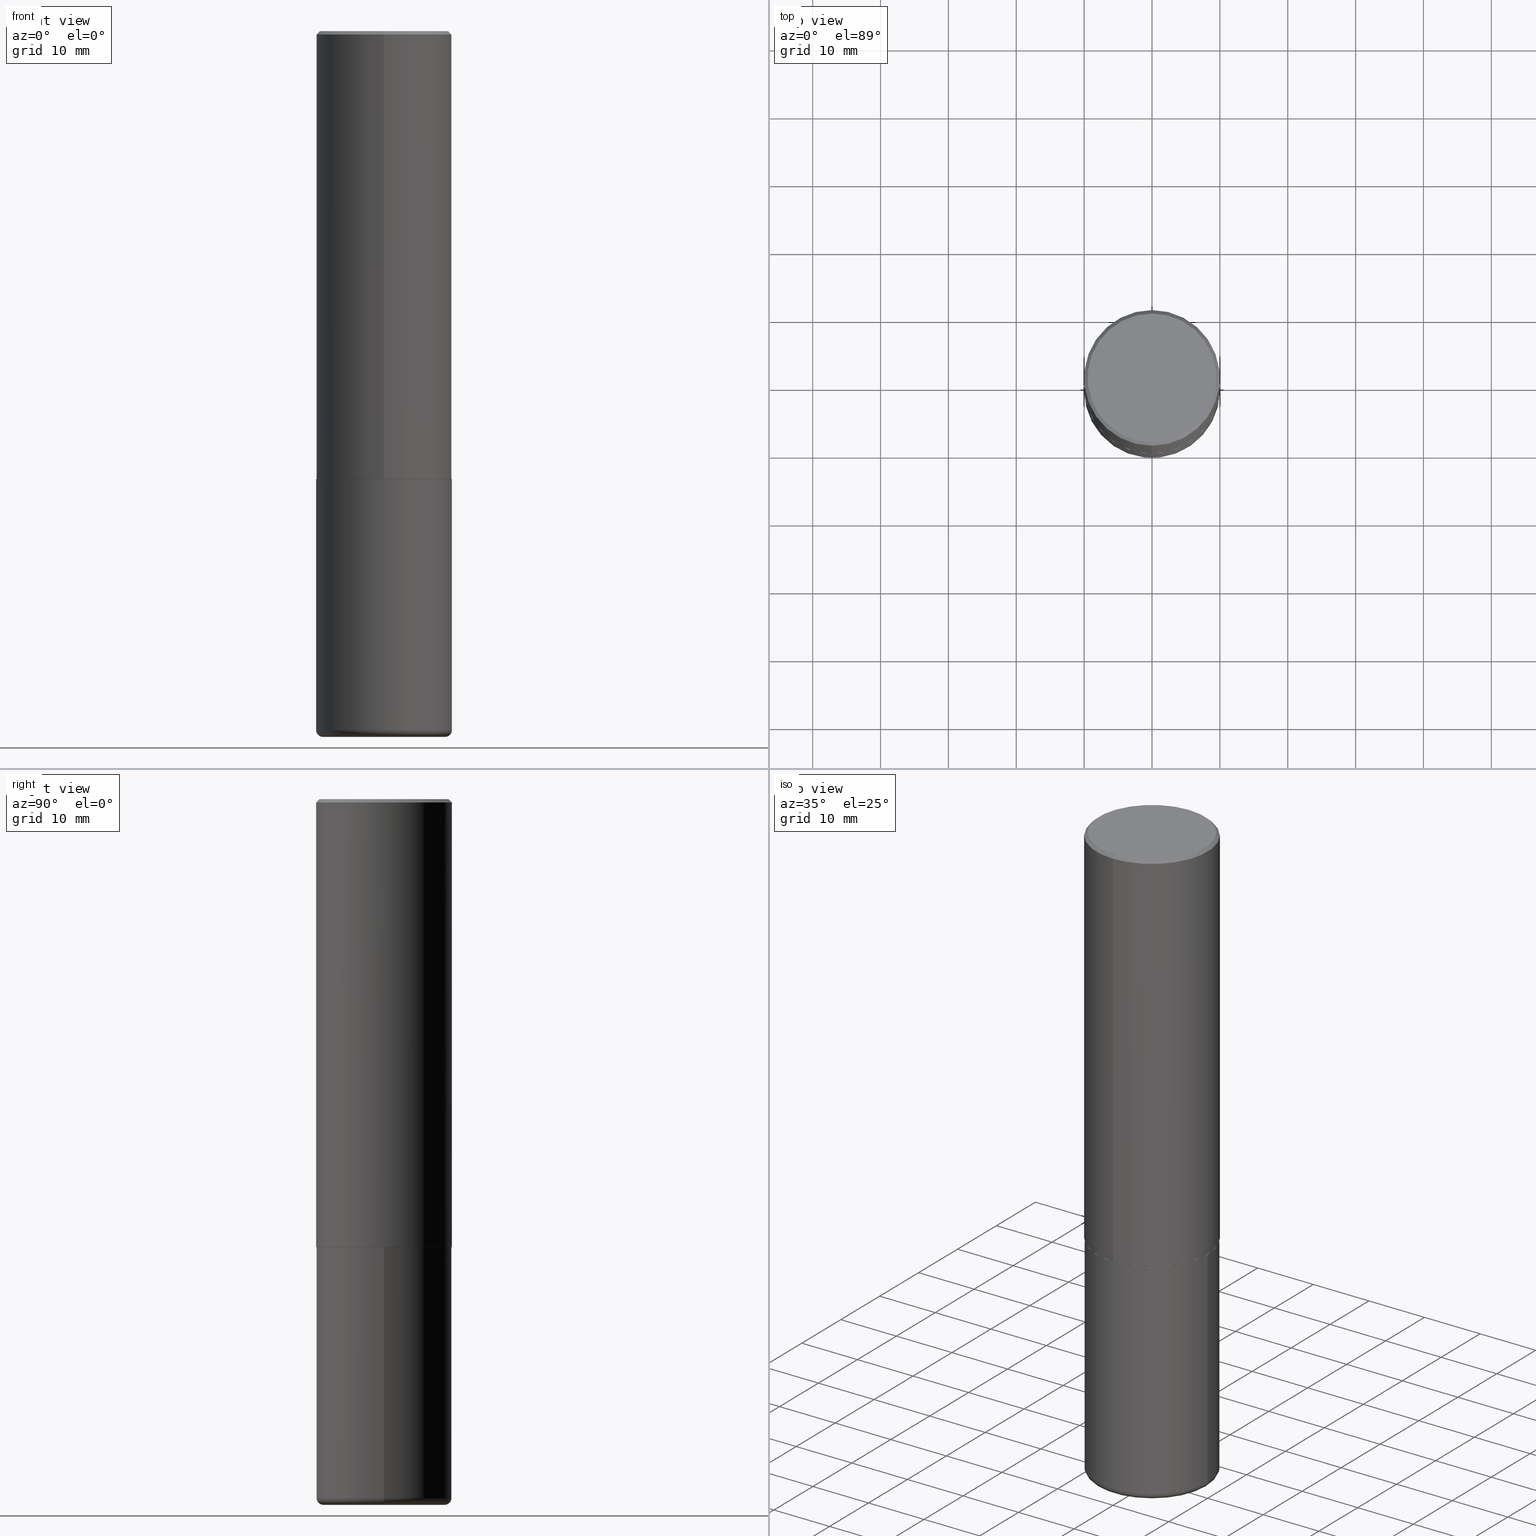
[diagram: canonical four-view strip — front | top / right | iso, engineering-drawing reading convention]
A machine part, canonical four-view strip (front | top / right | iso — engineering-drawing reading convention). The complete STEP part file that produces these views, byte-faithful:
ISO-10303-21;
HEADER;
FILE_DESCRIPTION (( 'STEP AP203' ),
    '1' );
FILE_NAME ('46922.STEP',
    '2024-03-05T08:50:15',
    ( '' ),
    ( '' ),
    'SwSTEP 2.0',
    'SolidWorks 2023',
    '' );
FILE_SCHEMA (( 'CONFIG_CONTROL_DESIGN' ));
ENDSEC;

DATA;
#1 = DIRECTION ( 'NONE',  ( 6.982962677686265133E-15, 1.000000000000000000, -3.491137977679279424E-15 ) ) ;
#2 = EDGE_LOOP ( 'NONE', ( #32, #122, #293, #216 ) ) ;
#3 = CIRCLE ( 'NONE', #35, 0.3937000000000001054 ) ;
#4 = AXIS2_PLACEMENT_3D ( 'NONE', #298, #327, #412 ) ;
#5 = ADVANCED_FACE ( 'NONE', ( #137 ), #66, .T. ) ;
#6 = PERSON_AND_ORGANIZATION_ROLE ( 'design_owner' ) ;
#7 =( NAMED_UNIT ( * ) PLANE_ANGLE_UNIT ( ) SI_UNIT ( $, .RADIAN. ) );
#8 = AXIS2_PLACEMENT_3D ( 'NONE', #98, #86, #124 ) ;
#9 = CARTESIAN_POINT ( 'NONE',  ( 1.001297202692504215E-28, -1.429587034189326149E-14, -4.094500000000000028 ) ) ;
#10 = CC_DESIGN_PERSON_AND_ORGANIZATION_ASSIGNMENT ( #400, #404, ( #324 ) ) ;
#11 = DIRECTION ( 'NONE',  ( 6.982962677686265133E-15, 1.000000000000000000, -3.491137977679279424E-15 ) ) ;
#12 = CONICAL_SURFACE ( 'NONE', #183, 0.3926999999999999935, 0.7853981633976873100 ) ;
#13 = SHAPE_DEFINITION_REPRESENTATION ( #19, #93 ) ;
#14 = CIRCLE ( 'NONE', #304, 0.03940000000000005997 ) ;
#15 = CARTESIAN_POINT ( 'NONE',  ( 6.353240808808724474E-29, -9.073790734330933280E-15, -2.598400000000000265 ) ) ;
#16 = CC_DESIGN_PERSON_AND_ORGANIZATION_ASSIGNMENT ( #231, #6, ( #315 ) ) ;
#17 = DATE_AND_TIME ( #377, #125 ) ;
#18 = DIRECTION ( 'NONE',  ( -2.445058808808776392E-29, 3.492068478421694670E-15, 1.000000000000000000 ) ) ;
#19 = PRODUCT_DEFINITION_SHAPE ( 'NONE', 'NONE',  #47 ) ;
#20 = DATE_TIME_ROLE ( 'creation_date' ) ;
#21 = DIRECTION ( 'NONE',  ( -2.445468806185136877E-29, 3.491481338843145188E-15, 1.000000000000000000 ) ) ;
#22 = LOCAL_TIME ( 3, 50, 15.00000000000000000, #312 ) ;
#23 = DIRECTION ( 'NONE',  ( -6.982962677686265133E-15, -1.000000000000000000, 4.173946514383900962E-15 ) ) ;
#24 = DIRECTION ( 'NONE',  ( 4.937700262164543309E-15, 0.7071067811865444641, -0.7071067811865503483 ) ) ;
#25 = VERTEX_POINT ( 'NONE', #77 ) ;
#26 = CARTESIAN_POINT ( 'NONE',  ( -5.119379194384959481E-45, 7.311571668294261102E-31, 2.093765260754239936E-16 ) ) ;
#27 = ORIENTED_EDGE ( 'NONE', *, *, #85, .T. ) ;
#28 = PLANE ( 'NONE',  #275 ) ;
#29 = VERTEX_POINT ( 'NONE', #263 ) ;
#30 = CLOSED_SHELL ( 'NONE', ( #105, #159, #168, #50, #89, #80, #59, #213 ) ) ;
#31 = FACE_OUTER_BOUND ( 'NONE', #55, .T. ) ;
#32 = ORIENTED_EDGE ( 'NONE', *, *, #82, .F. ) ;
#33 = DIRECTION ( 'NONE',  ( 6.982962677686265922E-15, 1.000000000000000000, -3.492068478421695064E-15 ) ) ;
#34 = ORIENTED_EDGE ( 'NONE', *, *, #193, .F. ) ;
#35 = AXIS2_PLACEMENT_3D ( 'NONE', #333, #101, #334 ) ;
#36 = AXIS2_PLACEMENT_3D ( 'NONE', #160, #417, #129 ) ;
#37 = DIRECTION ( 'NONE',  ( 0.000000000000000000, 0.000000000000000000, 1.000000000000000000 ) ) ;
#38 = DIRECTION ( 'NONE',  ( -2.445468806185136597E-29, 3.491481338843145583E-15, 1.000000000000000000 ) ) ;
#39 = VECTOR ( 'NONE', #21, 39.37007874015748143 ) ;
#40 = CARTESIAN_POINT ( 'NONE',  ( -0.3937000000000001054, 2.797406750687515181E-15, -1.936584745033357016E-29 ) ) ;
#41 = CARTESIAN_POINT ( 'NONE',  ( 1.001297202692504215E-28, -1.429587034189326149E-14, -4.094500000000000028 ) ) ;
#42 = DIRECTION ( 'NONE',  ( -2.445058808808776392E-29, 3.492068478421694670E-15, 1.000000000000000000 ) ) ;
#43 = APPROVAL ( #274, 'UNSPECIFIED' ) ;
#44 = DIRECTION ( 'NONE',  ( 1.000000000000000000, -6.982962677686266711E-15, 4.876176775795935793E-29 ) ) ;
#45 = DIRECTION ( 'NONE',  ( 1.000000000000000000, -6.982962677686266711E-15, 4.883557194083112340E-29 ) ) ;
#46 = DATE_AND_TIME ( #113, #233 ) ;
#47 = PRODUCT_DEFINITION ( 'UNKNOWN', '', #324, #91 ) ;
#48 = SECURITY_CLASSIFICATION_LEVEL ( 'unclassified' ) ;
#49 = CIRCLE ( 'NONE', #8, 0.3937000000000002720 ) ;
#50 = ADVANCED_FACE ( 'NONE', ( #176 ), #336, .T. ) ;
#51 = APPROVAL_DATE_TIME ( #406, #43 ) ;
#52 = DIRECTION ( 'NONE',  ( -2.445058808808776392E-29, 3.492068478421694670E-15, 1.000000000000000000 ) ) ;
#53 = ORIENTED_EDGE ( 'NONE', *, *, #112, .T. ) ;
#54 = CARTESIAN_POINT ( 'NONE',  ( 2.609533152651355831E-15, 0.3736999999999997546, -1.200297727348474625E-15 ) ) ;
#55 = EDGE_LOOP ( 'NONE', ( #68, #350 ) ) ;
#56 = FACE_OUTER_BOUND ( 'NONE', #299, .T. ) ;
#57 = AXIS2_PLACEMENT_3D ( 'NONE', #207, #335, #45 ) ;
#58 = LINE ( 'NONE', #189, #389 ) ;
#59 = ADVANCED_FACE ( 'NONE', ( #232 ), #72, .F. ) ;
#60 = ORIENTED_EDGE ( 'NONE', *, *, #74, .F. ) ;
#61 = CARTESIAN_POINT ( 'NONE',  ( -2.749192406205021291E-15, -0.3937000000000093758, -2.597399999999999043 ) ) ;
#62 = VERTEX_POINT ( 'NONE', #203 ) ;
#63 = CIRCLE ( 'NONE', #36, 0.03940000000000005997 ) ;
#64 = DIRECTION ( 'NONE',  ( -4.851104656540959542E-15, -0.7071067811865493491, -0.7071067811865454633 ) ) ;
#65 = VERTEX_POINT ( 'NONE', #81 ) ;
#66 = TOROIDAL_SURFACE ( 'NONE', #57, 0.3543000000000000038, 0.03940000000000009467 ) ;
#67 = CARTESIAN_POINT ( 'NONE',  ( 4.890117617617573732E-31, -6.984136956843418330E-17, -0.02000000000000008715 ) ) ;
#68 = ORIENTED_EDGE ( 'NONE', *, *, #342, .F. ) ;
#69 = DIRECTION ( 'NONE',  ( -2.445468806185136597E-29, 3.491481338843145583E-15, 1.000000000000000000 ) ) ;
#70 = AXIS2_PLACEMENT_3D ( 'NONE', #75, #261, #44 ) ;
#71 = PERSON_AND_ORGANIZATION ( #361, #266 ) ;
#72 = PLANE ( 'NONE',  #343 ) ;
#73 = CARTESIAN_POINT ( 'NONE',  ( 6.354306145991459756E-29, -9.072265110850031044E-15, -2.598400000000000265 ) ) ;
#74 = EDGE_CURVE ( 'NONE', #99, #352, #305, .T. ) ;
#75 = CARTESIAN_POINT ( 'NONE',  ( 0.000000000000000000, 0.000000000000000000, 0.000000000000000000 ) ) ;
#76 = VECTOR ( 'NONE', #64, 39.37007874015748854 ) ;
#77 = CARTESIAN_POINT ( 'NONE',  ( 2.749192406205083217E-15, 0.3936999999999999389, -0.02000000000000146105 ) ) ;
#78 = DIRECTION ( 'NONE',  ( 5.024295867789263036E-15, 0.7071067811867189912, 0.7071067811863760433 ) ) ;
#79 = APPROVAL_PERSON_ORGANIZATION ( #71, #414, #106 ) ;
#80 = ADVANCED_FACE ( 'NONE', ( #56 ), #223, .T. ) ;
#81 = CARTESIAN_POINT ( 'NONE',  ( 0.3937000000000001054, -1.690749838334792550E-14, -4.055100000000000371 ) ) ;
#82 = EDGE_CURVE ( 'NONE', #62, #260, #383, .T. ) ;
#83 = VECTOR ( 'NONE', #119, 39.37007874015748143 ) ;
#84 = APPROVAL_ROLE ( '' ) ;
#85 = EDGE_CURVE ( 'NONE', #109, #29, #279, .T. ) ;
#86 = DIRECTION ( 'NONE',  ( -2.445058808808776392E-29, 3.492068478421694670E-15, 1.000000000000000000 ) ) ;
#87 = AXIS2_PLACEMENT_3D ( 'NONE', #26, #296, #351 ) ;
#88 = ORIENTED_EDGE ( 'NONE', *, *, #205, .T. ) ;
#89 = ADVANCED_FACE ( 'NONE', ( #375 ), #341, .T. ) ;
#90 = DIRECTION ( 'NONE',  ( -2.445468806185136597E-29, 3.491481338843145583E-15, 1.000000000000000000 ) ) ;
#91 = DESIGN_CONTEXT ( 'detailed design', #272, 'design' ) ;
#92 = ORIENTED_EDGE ( 'NONE', *, *, #123, .F. ) ;
#93 = ADVANCED_BREP_SHAPE_REPRESENTATION ( '46922', ( #397, #271, #116 ), #330 ) ;
#94 = FACE_OUTER_BOUND ( 'NONE', #219, .T. ) ;
#95 = ORIENTED_EDGE ( 'NONE', *, *, #123, .T. ) ;
#96 = DIRECTION ( 'NONE',  ( -1.000000000000000000, 7.105427357601014480E-15, 0.000000000000000000 ) ) ;
#97 = ORIENTED_EDGE ( 'NONE', *, *, #281, .F. ) ;
#98 = CARTESIAN_POINT ( 'NONE',  ( 6.350795749999916474E-29, -9.070298665852512644E-15, -2.597400000000000375 ) ) ;
#99 = VERTEX_POINT ( 'NONE', #152 ) ;
#100 = CARTESIAN_POINT ( 'NONE',  ( 6.353240808808724474E-29, -9.073790734330933280E-15, -2.598400000000000265 ) ) ;
#101 = DIRECTION ( 'NONE',  ( -2.445468806185136597E-29, 3.491481338843145583E-15, 1.000000000000000000 ) ) ;
#102 = DIRECTION ( 'NONE',  ( -2.445468806185136597E-29, 3.491481338843145583E-15, 1.000000000000000000 ) ) ;
#103 = ORIENTED_EDGE ( 'NONE', *, *, #199, .F. ) ;
#104 = AXIS2_PLACEMENT_3D ( 'NONE', #303, #157, #319 ) ;
#105 = ADVANCED_FACE ( 'NONE', ( #186 ), #12, .T. ) ;
#106 = APPROVAL_ROLE ( '' ) ;
#107 = CARTESIAN_POINT ( 'NONE',  ( 6.354306145991459756E-29, -9.072265110850031044E-15, -2.598400000000000265 ) ) ;
#108 = AXIS2_PLACEMENT_3D ( 'NONE', #278, #52, #182 ) ;
#109 = VERTEX_POINT ( 'NONE', #154 ) ;
#110 = ORIENTED_EDGE ( 'NONE', *, *, #220, .F. ) ;
#111 = AXIS2_PLACEMENT_3D ( 'NONE', #285, #416, #140 ) ;
#112 = EDGE_CURVE ( 'NONE', #252, #290, #146, .T. ) ;
#113 = CALENDAR_DATE ( 2024, 5, 3 ) ;
#114 = APPROVAL_DATE_TIME ( #17, #237 ) ;
#115 = CC_DESIGN_DATE_AND_TIME_ASSIGNMENT ( #180, #20, ( #47 ) ) ;
#116 = AXIS2_PLACEMENT_3D ( 'NONE', #309, #37, #177 ) ;
#117 = DIRECTION ( 'NONE',  ( -6.982962677686265922E-15, -1.000000000000000000, 3.492068478421694670E-15 ) ) ;
#118 = APPROVAL_STATUS ( 'not_yet_approved' ) ;
#119 = DIRECTION ( 'NONE',  ( -2.445058808808776111E-29, 3.492068478421695064E-15, 1.000000000000000000 ) ) ;
#120 = EDGE_CURVE ( 'NONE', #290, #25, #364, .T. ) ;
#121 = FACE_OUTER_BOUND ( 'NONE', #133, .T. ) ;
#122 = ORIENTED_EDGE ( 'NONE', *, *, #193, .T. ) ;
#123 = EDGE_CURVE ( 'NONE', #29, #109, #415, .T. ) ;
#124 = DIRECTION ( 'NONE',  ( -6.982962677686265922E-15, -1.000000000000000000, 4.163344669033672479E-15 ) ) ;
#125 = LOCAL_TIME ( 3, 50, 15.00000000000000000, #311 ) ;
#126 = ORIENTED_EDGE ( 'NONE', *, *, #243, .T. ) ;
#127 = PLANE ( 'NONE',  #238 ) ;
#128 = ORIENTED_EDGE ( 'NONE', *, *, #85, .F. ) ;
#129 = DIRECTION ( 'NONE',  ( 1.000000000000000000, -6.982962677686267499E-15, 0.000000000000000000 ) ) ;
#130 = EDGE_CURVE ( 'NONE', #109, #413, #242, .T. ) ;
#131 = EDGE_LOOP ( 'NONE', ( #195, #326, #153, #323 ) ) ;
#132 = DIRECTION ( 'NONE',  ( -6.982962677686265922E-15, -1.000000000000000000, 3.492068478421694670E-15 ) ) ;
#133 = EDGE_LOOP ( 'NONE', ( #60, #158, #418, #190 ) ) ;
#134 = CC_DESIGN_APPROVAL ( #414, ( #47 ) ) ;
#135 = CARTESIAN_POINT ( 'NONE',  ( 2.797406750687547524E-15, 0.3936999999999912236, -2.597400000000002152 ) ) ;
#136 = DIRECTION ( 'NONE',  ( 1.000000000000000000, -6.982962677686267499E-15, 0.000000000000000000 ) ) ;
#137 = FACE_OUTER_BOUND ( 'NONE', #355, .T. ) ;
#138 = ADVANCED_FACE ( 'NONE', ( #402 ), #280, .T. ) ;
#139 = CIRCLE ( 'NONE', #380, 0.3937000000000000499 ) ;
#140 = DIRECTION ( 'NONE',  ( -6.982962677686265922E-15, -1.000000000000000000, 3.492068478421695064E-15 ) ) ;
#141 = CARTESIAN_POINT ( 'NONE',  ( 6.354306145991459756E-29, -9.072265110850031044E-15, -2.598400000000000265 ) ) ;
#142 = AXIS2_PLACEMENT_3D ( 'NONE', #407, #316, #289 ) ;
#143 = DIRECTION ( 'NONE',  ( -2.445058808808775831E-29, 3.492068478421695064E-15, 1.000000000000000000 ) ) ;
#144 = PERSON_AND_ORGANIZATION ( #361, #266 ) ;
#145 = CIRCLE ( 'NONE', #104, 0.3937000000000000499 ) ;
#146 = LINE ( 'NONE', #286, #83 ) ;
#147 = DIRECTION ( 'NONE',  ( -2.445058808808776392E-29, 3.492068478421694670E-15, 1.000000000000000000 ) ) ;
#148 = AXIS2_PLACEMENT_3D ( 'NONE', #15, #147, #345 ) ;
#149 = APPLICATION_CONTEXT ( 'configuration controlled 3d designs of mechanical parts and assemblies' ) ;
#150 = PERSON_AND_ORGANIZATION ( #361, #266 ) ;
#151 = LOCAL_TIME ( 3, 50, 15.00000000000000000, #277 ) ;
#152 = CARTESIAN_POINT ( 'NONE',  ( -2.632373081744935132E-15, -0.3736999999999997546, 1.514362516461610517E-15 ) ) ;
#153 = ORIENTED_EDGE ( 'NONE', *, *, #393, .F. ) ;
#154 = CARTESIAN_POINT ( 'NONE',  ( 2.793854037008778575E-15, 0.3926999999999909452, -2.598400000000002041 ) ) ;
#155 = DIRECTION ( 'NONE',  ( 1.000000000000000000, -6.982962677686266711E-15, 4.876176775795935793E-29 ) ) ;
#156 = EDGE_LOOP ( 'NONE', ( #92, #128 ) ) ;
#157 = DIRECTION ( 'NONE',  ( -2.445058808808776392E-29, 3.492068478421694670E-15, 1.000000000000000000 ) ) ;
#158 = ORIENTED_EDGE ( 'NONE', *, *, #163, .T. ) ;
#159 = ADVANCED_FACE ( 'NONE', ( #194 ), #354, .T. ) ;
#160 = CARTESIAN_POINT ( 'NONE',  ( 0.3543000000000000038, -1.663236965384708391E-14, -4.055100000000000371 ) ) ;
#161 = EDGE_LOOP ( 'NONE', ( #329, #411 ) ) ;
#162 = AXIS2_PLACEMENT_3D ( 'NONE', #100, #42, #181 ) ;
#163 = EDGE_CURVE ( 'NONE', #99, #290, #300, .T. ) ;
#164 = DIRECTION ( 'NONE',  ( 2.438088387897960049E-29, -3.491481338843145188E-15, -1.000000000000000000 ) ) ;
#165 = ORIENTED_EDGE ( 'NONE', *, *, #163, .F. ) ;
#166 = DIRECTION ( 'NONE',  ( -2.445468806185136877E-29, 3.491481338843145188E-15, 1.000000000000000000 ) ) ;
#167 = ADVANCED_FACE ( 'NONE', ( #31 ), #127, .T. ) ;
#168 = ADVANCED_FACE ( 'NONE', ( #121 ), #265, .T. ) ;
#169 = ADVANCED_FACE ( 'NONE', ( #410 ), #302, .T. ) ;
#170 = CARTESIAN_POINT ( 'NONE',  ( 2.679362779428219524E-15, 0.3736999999999997546, -1.095609464310762333E-15 ) ) ;
#171 = CARTESIAN_POINT ( 'NONE',  ( 6.353240808808724474E-29, -9.073790734330933280E-15, -2.598400000000000265 ) ) ;
#172 = CARTESIAN_POINT ( 'NONE',  ( -2.700978061722651252E-15, -0.3937000000000001054, -0.01999999999999870978 ) ) ;
#173 = AXIS2_PLACEMENT_3D ( 'NONE', #67, #221, #1 ) ;
#174 = CIRCLE ( 'NONE', #87, 0.3736999999999997546 ) ;
#175 = DIRECTION ( 'NONE',  ( 2.438088387897960049E-29, -3.491481338843145188E-15, -1.000000000000000000 ) ) ;
#176 = FACE_OUTER_BOUND ( 'NONE', #388, .T. ) ;
#177 = DIRECTION ( 'NONE',  ( 1.000000000000000000, 0.000000000000000000, 0.000000000000000000 ) ) ;
#178 = DIRECTION ( 'NONE',  ( -2.445058808808776392E-29, 3.492068478421694670E-15, 1.000000000000000000 ) ) ;
#179 = CC_DESIGN_APPROVAL ( #237, ( #185 ) ) ;
#180 = DATE_AND_TIME ( #314, #208 ) ;
#181 = DIRECTION ( 'NONE',  ( -6.982962677686265133E-15, -1.000000000000000000, 4.173946514383900962E-15 ) ) ;
#182 = DIRECTION ( 'NONE',  ( -6.982962677686265133E-15, -1.000000000000000000, 3.491137977679279424E-15 ) ) ;
#183 = AXIS2_PLACEMENT_3D ( 'NONE', #245, #178, #23 ) ;
#184 = PERSON_AND_ORGANIZATION_ROLE ( 'creator' ) ;
#185 = SECURITY_CLASSIFICATION ( '', '', #48 ) ;
#186 = FACE_OUTER_BOUND ( 'NONE', #250, .T. ) ;
#187 = CARTESIAN_POINT ( 'NONE',  ( 6.350795749999916474E-29, -9.070298665852512644E-15, -2.597400000000000375 ) ) ;
#188 = ORIENTED_EDGE ( 'NONE', *, *, #268, .T. ) ;
#189 = CARTESIAN_POINT ( 'NONE',  ( 2.797406750687515181E-15, 0.3937000000000001609, -1.374827359954621742E-15 ) ) ;
#190 = ORIENTED_EDGE ( 'NONE', *, *, #243, .F. ) ;
#191 = CARTESIAN_POINT ( 'NONE',  ( 0.3543000000000000038, -1.676993401859750628E-14, -4.094500000000000028 ) ) ;
#192 = VERTEX_POINT ( 'NONE', #197 ) ;
#193 = EDGE_CURVE ( 'NONE', #62, #65, #234, .T. ) ;
#194 = FACE_OUTER_BOUND ( 'NONE', #297, .T. ) ;
#195 = ORIENTED_EDGE ( 'NONE', *, *, #342, .T. ) ;
#196 = VECTOR ( 'NONE', #78, 39.37007874015748143 ) ;
#197 = CARTESIAN_POINT ( 'NONE',  ( 0.3937000000000000499, -1.182145751705511584E-14, -2.598400000000000265 ) ) ;
#198 = EDGE_LOOP ( 'NONE', ( #382, #321, #408, #110 ) ) ;
#199 = EDGE_CURVE ( 'NONE', #413, #252, #340, .T. ) ;
#200 = FACE_OUTER_BOUND ( 'NONE', #161, .T. ) ;
#201 = AXIS2_PLACEMENT_3D ( 'NONE', #107, #102, #396 ) ;
#202 = DIRECTION ( 'NONE',  ( -4.937700262165728178E-15, -0.7071067811867141062, 0.7071067811863809283 ) ) ;
#203 = CARTESIAN_POINT ( 'NONE',  ( -0.3937000000000001054, -1.136089922645532513E-14, -4.055100000000000371 ) ) ;
#204 = APPLICATION_PROTOCOL_DEFINITION ( 'international standard', 'config_control_design', 1994, #149 ) ;
#205 = EDGE_CURVE ( 'NONE', #413, #25, #58, .T. ) ;
#206 = LINE ( 'NONE', #366, #214 ) ;
#207 = CARTESIAN_POINT ( 'NONE',  ( 9.916620555961347550E-29, -1.415830597714284070E-14, -4.055100000000000371 ) ) ;
#208 = LOCAL_TIME ( 3, 50, 15.00000000000000000, #344 ) ;
#209 = AXIS2_PLACEMENT_3D ( 'NONE', #378, #390, #349 ) ;
#210 = PERSON_AND_ORGANIZATION_ROLE ( 'creator' ) ;
#211 = PERSON_AND_ORGANIZATION ( #361, #266 ) ;
#212 = EDGE_CURVE ( 'NONE', #252, #413, #49, .T. ) ;
#213 = ADVANCED_FACE ( 'NONE', ( #94 ), #28, .F. ) ;
#214 = VECTOR ( 'NONE', #202, 39.37007874015748143 ) ;
#215 = APPROVAL_DATE_TIME ( #401, #414 ) ;
#216 = ORIENTED_EDGE ( 'NONE', *, *, #353, .F. ) ;
#217 = VECTOR ( 'NONE', #166, 39.37007874015748143 ) ;
#218 = DIRECTION ( 'NONE',  ( -2.445058808808776392E-29, 3.492068478421694670E-15, 1.000000000000000000 ) ) ;
#219 = EDGE_LOOP ( 'NONE', ( #409, #357 ) ) ;
#220 = EDGE_CURVE ( 'NONE', #65, #192, #226, .T. ) ;
#221 = DIRECTION ( 'NONE',  ( 2.445058808808776392E-29, -3.492068478421694670E-15, -1.000000000000000000 ) ) ;
#222 = ORIENTED_EDGE ( 'NONE', *, *, #130, .F. ) ;
#223 = CONICAL_SURFACE ( 'NONE', #162, 0.3926999999999999935, 0.7853981633976873100 ) ;
#224 = CARTESIAN_POINT ( 'NONE',  ( -2.700978061722651252E-15, -0.3937000000000001054, -0.01999999999999870978 ) ) ;
#225 = ORIENTED_EDGE ( 'NONE', *, *, #205, .F. ) ;
#226 = LINE ( 'NONE', #251, #217 ) ;
#227 = APPROVAL_PERSON_ORGANIZATION ( #144, #43, #84 ) ;
#228 = DIRECTION ( 'NONE',  ( -6.982962677686265922E-15, -1.000000000000000000, 4.163344669033672479E-15 ) ) ;
#229 = VERTEX_POINT ( 'NONE', #322 ) ;
#230 =( NAMED_UNIT ( * ) SI_UNIT ( $, .STERADIAN. ) SOLID_ANGLE_UNIT ( ) );
#231 = PERSON_AND_ORGANIZATION ( #361, #266 ) ;
#232 = FACE_OUTER_BOUND ( 'NONE', #156, .T. ) ;
#233 = LOCAL_TIME ( 3, 50, 15.00000000000000000, #374 ) ;
#234 = CIRCLE ( 'NONE', #4, 0.3937000000000001054 ) ;
#235 = AXIS2_PLACEMENT_3D ( 'NONE', #187, #258, #228 ) ;
#236 = DIRECTION ( 'NONE',  ( -2.445468806185136597E-29, 3.491481338843145583E-15, 1.000000000000000000 ) ) ;
#237 = APPROVAL ( #118, 'UNSPECIFIED' ) ;
#238 = AXIS2_PLACEMENT_3D ( 'NONE', #347, #164, #292 ) ;
#239 = ORIENTED_EDGE ( 'NONE', *, *, #199, .T. ) ;
#240 = EDGE_CURVE ( 'NONE', #25, #290, #145, .T. ) ;
#241 = DATE_TIME_ROLE ( 'classification_date' ) ;
#242 = LINE ( 'NONE', #370, #196 ) ;
#243 = EDGE_CURVE ( 'NONE', #352, #25, #254, .T. ) ;
#244 = APPROVAL_ROLE ( '' ) ;
#245 = CARTESIAN_POINT ( 'NONE',  ( 6.353240808808724474E-29, -9.073790734330933280E-15, -2.598400000000000265 ) ) ;
#246 = VECTOR ( 'NONE', #24, 39.37007874015748854 ) ;
#247 = EDGE_CURVE ( 'NONE', #352, #99, #174, .T. ) ;
#248 = ORIENTED_EDGE ( 'NONE', *, *, #270, .F. ) ;
#249 = CARTESIAN_POINT ( 'NONE',  ( 2.749192406205083217E-15, 0.3936999999999999389, -0.02000000000000146105 ) ) ;
#250 = EDGE_LOOP ( 'NONE', ( #95, #301, #348, #97 ) ) ;
#251 = CARTESIAN_POINT ( 'NONE',  ( 0.3937000000000001054, -2.749192406205084005E-15, 1.919750796630860452E-29 ) ) ;
#252 = VERTEX_POINT ( 'NONE', #61 ) ;
#253 = CC_DESIGN_PERSON_AND_ORGANIZATION_ASSIGNMENT ( #211, #210, ( #47 ) ) ;
#254 = LINE ( 'NONE', #249, #246 ) ;
#255 = ORIENTED_EDGE ( 'NONE', *, *, #212, .T. ) ;
#256 = CARTESIAN_POINT ( 'NONE',  ( -0.3543000000000000038, -1.164085306434480532E-14, -4.055100000000000371 ) ) ;
#257 = VERTEX_POINT ( 'NONE', #191 ) ;
#258 = DIRECTION ( 'NONE',  ( -2.445058808808776392E-29, 3.492068478421694670E-15, 1.000000000000000000 ) ) ;
#259 = CIRCLE ( 'NONE', #405, 0.3543000000000000038 ) ;
#260 = VERTEX_POINT ( 'NONE', #325 ) ;
#261 = DIRECTION ( 'NONE',  ( -2.445468806185136597E-29, 3.491481338843145583E-15, 1.000000000000000000 ) ) ;
#262 =( CONVERSION_BASED_UNIT ( 'INCH', #269 ) LENGTH_UNIT ( ) NAMED_UNIT ( #267 ) );
#263 = CARTESIAN_POINT ( 'NONE',  ( -2.742209443527332910E-15, -0.3927000000000090973, -2.598399999999998489 ) ) ;
#264 = DIRECTION ( 'NONE',  ( -1.000000000000000000, 6.982962677686265922E-15, -4.876176775795935793E-29 ) ) ;
#265 = CONICAL_SURFACE ( 'NONE', #173, 0.3937000000000000499, 0.7853981633974476129 ) ;
#266 = ORGANIZATION ( 'UNSPECIFIED', 'UNSPECIFIED', '' ) ;
#267 = DIMENSIONAL_EXPONENTS ( 1.000000000000000000, 0.000000000000000000, 0.000000000000000000, 0.000000000000000000, 0.000000000000000000, 0.000000000000000000, 0.000000000000000000 ) ;
#268 = EDGE_CURVE ( 'NONE', #257, #65, #63, .T. ) ;
#269 = LENGTH_MEASURE_WITH_UNIT ( LENGTH_MEASURE( 0.02539999999999999897 ), #399 );
#270 = EDGE_CURVE ( 'NONE', #229, #62, #14, .T. ) ;
#271 = MANIFOLD_SOLID_BREP ( 'Body-Move/Copy2[2]', #30 ) ;
#272 = APPLICATION_CONTEXT ( 'configuration controlled 3d designs of mechanical parts and assemblies' ) ;
#273 = DIRECTION ( 'NONE',  ( -6.982962677686265922E-15, -1.000000000000000000, 3.492068478421695064E-15 ) ) ;
#274 = APPROVAL_STATUS ( 'not_yet_approved' ) ;
#275 = AXIS2_PLACEMENT_3D ( 'NONE', #54, #356, #33 ) ;
#276 = AXIS2_PLACEMENT_3D ( 'NONE', #9, #38, #392 ) ;
#277 = COORDINATED_UNIVERSAL_TIME_OFFSET ( 5, 0, .BEHIND. ) ;
#278 = CARTESIAN_POINT ( 'NONE',  ( 4.890117617617573732E-31, -6.984136956843418330E-17, -0.02000000000000008715 ) ) ;
#279 = CIRCLE ( 'NONE', #148, 0.3926999999999999935 ) ;
#280 = CYLINDRICAL_SURFACE ( 'NONE', #338, 0.3937000000000001054 ) ;
#281 = EDGE_CURVE ( 'NONE', #29, #252, #206, .T. ) ;
#282 = CALENDAR_DATE ( 2024, 5, 3 ) ;
#283 = CARTESIAN_POINT ( 'NONE',  ( 0.000000000000000000, 0.000000000000000000, 0.000000000000000000 ) ) ;
#284 = PERSON_AND_ORGANIZATION ( #361, #266 ) ;
#285 = CARTESIAN_POINT ( 'NONE',  ( -5.119379194384959481E-45, 7.311571668294261102E-31, 2.093765260754239936E-16 ) ) ;
#286 = CARTESIAN_POINT ( 'NONE',  ( -2.749192406205084005E-15, -0.3937000000000001609, 1.374827359954621742E-15 ) ) ;
#287 = ORIENTED_EDGE ( 'NONE', *, *, #320, .T. ) ;
#288 = AXIS2_PLACEMENT_3D ( 'NONE', #310, #395, #11 ) ;
#289 = DIRECTION ( 'NONE',  ( -6.982962677686265133E-15, -1.000000000000000000, 4.173946514383900962E-15 ) ) ;
#290 = VERTEX_POINT ( 'NONE', #172 ) ;
#291 = AXIS2_PLACEMENT_3D ( 'NONE', #381, #218, #132 ) ;
#292 = DIRECTION ( 'NONE',  ( -1.000000000000000000, 6.982962677686265922E-15, -4.876176775795935793E-29 ) ) ;
#293 = ORIENTED_EDGE ( 'NONE', *, *, #220, .T. ) ;
#294 = PRODUCT_RELATED_PRODUCT_CATEGORY ( 'detail', '', ( #315 ) ) ;
#295 = CC_DESIGN_SECURITY_CLASSIFICATION ( #185, ( #324 ) ) ;
#296 = DIRECTION ( 'NONE',  ( -2.445058808808776392E-29, 3.492068478421694670E-15, 1.000000000000000000 ) ) ;
#297 = EDGE_LOOP ( 'NONE', ( #255, #88, #328, #391 ) ) ;
#298 = CARTESIAN_POINT ( 'NONE',  ( 9.916620555961347550E-29, -1.415830597714284070E-14, -4.055100000000000371 ) ) ;
#299 = EDGE_LOOP ( 'NONE', ( #222, #27, #367, #103 ) ) ;
#300 = LINE ( 'NONE', #224, #76 ) ;
#301 = ORIENTED_EDGE ( 'NONE', *, *, #130, .T. ) ;
#302 = TOROIDAL_SURFACE ( 'NONE', #209, 0.3543000000000000038, 0.03940000000000009467 ) ;
#303 = CARTESIAN_POINT ( 'NONE',  ( 4.890117617617573732E-31, -6.984136956843418330E-17, -0.02000000000000008715 ) ) ;
#304 = AXIS2_PLACEMENT_3D ( 'NONE', #256, #386, #96 ) ;
#305 = CIRCLE ( 'NONE', #111, 0.3736999999999997546 ) ;
#306 = CYLINDRICAL_SURFACE ( 'NONE', #70, 0.3937000000000001054 ) ;
#307 = DIRECTION ( 'NONE',  ( 1.000000000000000000, -6.982962677686266711E-15, 0.000000000000000000 ) ) ;
#308 = CIRCLE ( 'NONE', #276, 0.3543000000000000038 ) ;
#309 = CARTESIAN_POINT ( 'NONE',  ( 0.000000000000000000, 0.000000000000000000, 0.000000000000000000 ) ) ;
#310 = CARTESIAN_POINT ( 'NONE',  ( 4.890117617617573732E-31, -6.984136956843418330E-17, -0.02000000000000008715 ) ) ;
#311 = COORDINATED_UNIVERSAL_TIME_OFFSET ( 5, 0, .BEHIND. ) ;
#312 = COORDINATED_UNIVERSAL_TIME_OFFSET ( 5, 0, .BEHIND. ) ;
#313 = APPROVAL_PERSON_ORGANIZATION ( #284, #237, #244 ) ;
#314 = CALENDAR_DATE ( 2024, 5, 3 ) ;
#315 = PRODUCT ( '46922', '46922', '', ( #358 ) ) ;
#316 = DIRECTION ( 'NONE',  ( -2.445058808808776392E-29, 3.492068478421694670E-15, 1.000000000000000000 ) ) ;
#317 = CC_DESIGN_PERSON_AND_ORGANIZATION_ASSIGNMENT ( #339, #369, ( #185 ) ) ;
#318 = ORIENTED_EDGE ( 'NONE', *, *, #240, .T. ) ;
#319 = DIRECTION ( 'NONE',  ( -6.982962677686265133E-15, -1.000000000000000000, 3.491137977679279424E-15 ) ) ;
#320 = EDGE_CURVE ( 'NONE', #229, #257, #259, .T. ) ;
#321 = ORIENTED_EDGE ( 'NONE', *, *, #82, .T. ) ;
#322 = CARTESIAN_POINT ( 'NONE',  ( -0.3543000000000000038, -1.156965832777527483E-14, -4.094500000000000028 ) ) ;
#323 = ORIENTED_EDGE ( 'NONE', *, *, #268, .F. ) ;
#324 = PRODUCT_DEFINITION_FORMATION_WITH_SPECIFIED_SOURCE ( 'ANY', '', #315, .NOT_KNOWN. ) ;
#325 = CARTESIAN_POINT ( 'NONE',  ( -0.3937000000000000499, -8.817878793308920298E-15, -2.598400000000000265 ) ) ;
#326 = ORIENTED_EDGE ( 'NONE', *, *, #270, .T. ) ;
#327 = DIRECTION ( 'NONE',  ( -2.445468806185136597E-29, 3.491481338843145583E-15, 1.000000000000000000 ) ) ;
#328 = ORIENTED_EDGE ( 'NONE', *, *, #120, .F. ) ;
#329 = ORIENTED_EDGE ( 'NONE', *, *, #332, .T. ) ;
#330 =( GEOMETRIC_REPRESENTATION_CONTEXT ( 3 ) GLOBAL_UNCERTAINTY_ASSIGNED_CONTEXT ( ( #372 ) ) GLOBAL_UNIT_ASSIGNED_CONTEXT ( ( #262, #7, #230 ) ) REPRESENTATION_CONTEXT ( 'NONE', 'WORKASPACE' ) );
#331 = APPROVAL_STATUS ( 'not_yet_approved' ) ;
#332 = EDGE_CURVE ( 'NONE', #192, #260, #139, .T. ) ;
#333 = CARTESIAN_POINT ( 'NONE',  ( 9.916620555961347550E-29, -1.415830597714284070E-14, -4.055100000000000371 ) ) ;
#334 = DIRECTION ( 'NONE',  ( 1.000000000000000000, -6.982962677686266711E-15, 0.000000000000000000 ) ) ;
#335 = DIRECTION ( 'NONE',  ( -2.445468806185136597E-29, 3.491481338843145583E-15, 1.000000000000000000 ) ) ;
#336 = CONICAL_SURFACE ( 'NONE', #288, 0.3937000000000000499, 0.7853981633974476129 ) ;
#337 = CALENDAR_DATE ( 2024, 5, 3 ) ;
#338 = AXIS2_PLACEMENT_3D ( 'NONE', #371, #90, #155 ) ;
#339 = PERSON_AND_ORGANIZATION ( #361, #266 ) ;
#340 = CIRCLE ( 'NONE', #235, 0.3937000000000002720 ) ;
#341 = CYLINDRICAL_SURFACE ( 'NONE', #376, 0.3937000000000001609 ) ;
#342 = EDGE_CURVE ( 'NONE', #257, #229, #308, .T. ) ;
#343 = AXIS2_PLACEMENT_3D ( 'NONE', #171, #143, #273 ) ;
#344 = COORDINATED_UNIVERSAL_TIME_OFFSET ( 5, 0, .BEHIND. ) ;
#345 = DIRECTION ( 'NONE',  ( -6.982962677686265133E-15, -1.000000000000000000, 4.173946514383900962E-15 ) ) ;
#346 = AXIS2_PLACEMENT_3D ( 'NONE', #141, #175, #264 ) ;
#347 = CARTESIAN_POINT ( 'NONE',  ( 1.001297202692504215E-28, -1.429587034189326149E-14, -4.094500000000000028 ) ) ;
#348 = ORIENTED_EDGE ( 'NONE', *, *, #212, .F. ) ;
#349 = DIRECTION ( 'NONE',  ( 1.000000000000000000, -6.982962677686266711E-15, 4.883557194083112340E-29 ) ) ;
#350 = ORIENTED_EDGE ( 'NONE', *, *, #320, .F. ) ;
#351 = DIRECTION ( 'NONE',  ( -6.982962677686265922E-15, -1.000000000000000000, 3.492068478421695064E-15 ) ) ;
#352 = VERTEX_POINT ( 'NONE', #170 ) ;
#353 = EDGE_CURVE ( 'NONE', #260, #192, #360, .T. ) ;
#354 = CYLINDRICAL_SURFACE ( 'NONE', #291, 0.3937000000000001609 ) ;
#355 = EDGE_LOOP ( 'NONE', ( #248, #287, #188, #34 ) ) ;
#356 = DIRECTION ( 'NONE',  ( 2.445058808808775831E-29, -3.492068478421695064E-15, -1.000000000000000000 ) ) ;
#357 = ORIENTED_EDGE ( 'NONE', *, *, #74, .T. ) ;
#358 = MECHANICAL_CONTEXT ( 'NONE', #149, 'mechanical' ) ;
#359 = CC_DESIGN_DATE_AND_TIME_ASSIGNMENT ( #46, #241, ( #185 ) ) ;
#360 = CIRCLE ( 'NONE', #201, 0.3937000000000000499 ) ;
#361 = PERSON ( 'UNSPECIFIED', 'UNSPECIFIED', 'UNSPECIFIED', ('UNSPECIFIED'), ('UNSPECIFIED'), ('UNSPECIFIED') ) ;
#362 = APPLICATION_PROTOCOL_DEFINITION ( 'international standard', 'config_control_design', 1994, #272 ) ;
#363 = PLANE ( 'NONE',  #346 ) ;
#364 = CIRCLE ( 'NONE', #108, 0.3937000000000000499 ) ;
#365 = EDGE_LOOP ( 'NONE', ( #225, #239, #53, #385 ) ) ;
#366 = CARTESIAN_POINT ( 'NONE',  ( -2.742209443527332910E-15, -0.3927000000000090973, -2.598399999999998489 ) ) ;
#367 = ORIENTED_EDGE ( 'NONE', *, *, #281, .T. ) ;
#368 = CC_DESIGN_APPROVAL ( #43, ( #324 ) ) ;
#369 = PERSON_AND_ORGANIZATION_ROLE ( 'classification_officer' ) ;
#370 = CARTESIAN_POINT ( 'NONE',  ( 2.790301323329976493E-15, 0.3926999999999909452, -2.598400000000002041 ) ) ;
#371 = CARTESIAN_POINT ( 'NONE',  ( 0.000000000000000000, 0.000000000000000000, 0.000000000000000000 ) ) ;
#372 = UNCERTAINTY_MEASURE_WITH_UNIT (LENGTH_MEASURE( 1.000000000000000082E-05 ), #262, 'distance_accuracy_value', 'NONE');
#373 = ADVANCED_FACE ( 'NONE', ( #200 ), #363, .F. ) ;
#374 = COORDINATED_UNIVERSAL_TIME_OFFSET ( 5, 0, .BEHIND. ) ;
#375 = FACE_OUTER_BOUND ( 'NONE', #365, .T. ) ;
#376 = AXIS2_PLACEMENT_3D ( 'NONE', #283, #18, #117 ) ;
#377 = CALENDAR_DATE ( 2024, 5, 3 ) ;
#378 = CARTESIAN_POINT ( 'NONE',  ( 9.916620555961347550E-29, -1.415830597714284070E-14, -4.055100000000000371 ) ) ;
#379 = ORIENTED_EDGE ( 'NONE', *, *, #247, .F. ) ;
#380 = AXIS2_PLACEMENT_3D ( 'NONE', #73, #69, #136 ) ;
#381 = CARTESIAN_POINT ( 'NONE',  ( 0.000000000000000000, 0.000000000000000000, 0.000000000000000000 ) ) ;
#382 = ORIENTED_EDGE ( 'NONE', *, *, #393, .T. ) ;
#383 = LINE ( 'NONE', #40, #39 ) ;
#384 = DIRECTION ( 'NONE',  ( -2.445058808808776111E-29, 3.492068478421695064E-15, 1.000000000000000000 ) ) ;
#385 = ORIENTED_EDGE ( 'NONE', *, *, #240, .F. ) ;
#386 = DIRECTION ( 'NONE',  ( 7.105427357601001859E-15, 1.000000000000000000, -3.491481338843145583E-15 ) ) ;
#387 = CC_DESIGN_PERSON_AND_ORGANIZATION_ASSIGNMENT ( #150, #184, ( #324 ) ) ;
#388 = EDGE_LOOP ( 'NONE', ( #165, #379, #126, #318 ) ) ;
#389 = VECTOR ( 'NONE', #384, 39.37007874015748143 ) ;
#390 = DIRECTION ( 'NONE',  ( -2.445468806185136597E-29, 3.491481338843145583E-15, 1.000000000000000000 ) ) ;
#391 = ORIENTED_EDGE ( 'NONE', *, *, #112, .F. ) ;
#392 = DIRECTION ( 'NONE',  ( 1.000000000000000000, -6.982962677686266711E-15, 0.000000000000000000 ) ) ;
#393 = EDGE_CURVE ( 'NONE', #65, #62, #3, .T. ) ;
#394 = FACE_OUTER_BOUND ( 'NONE', #2, .T. ) ;
#395 = DIRECTION ( 'NONE',  ( 2.445058808808776392E-29, -3.492068478421694670E-15, -1.000000000000000000 ) ) ;
#396 = DIRECTION ( 'NONE',  ( 1.000000000000000000, -6.982962677686267499E-15, 0.000000000000000000 ) ) ;
#397 = MANIFOLD_SOLID_BREP ( 'Body-Move/Copy2[1]', #398 ) ;
#398 = CLOSED_SHELL ( 'NONE', ( #138, #169, #373, #403, #5, #167 ) ) ;
#399 =( LENGTH_UNIT ( ) NAMED_UNIT ( * ) SI_UNIT ( $, .METRE. ) );
#400 = PERSON_AND_ORGANIZATION ( #361, #266 ) ;
#401 = DATE_AND_TIME ( #337, #151 ) ;
#402 = FACE_OUTER_BOUND ( 'NONE', #198, .T. ) ;
#403 = ADVANCED_FACE ( 'NONE', ( #394 ), #306, .T. ) ;
#404 = PERSON_AND_ORGANIZATION_ROLE ( 'design_supplier' ) ;
#405 = AXIS2_PLACEMENT_3D ( 'NONE', #41, #236, #307 ) ;
#406 = DATE_AND_TIME ( #282, #22 ) ;
#407 = CARTESIAN_POINT ( 'NONE',  ( 6.353240808808724474E-29, -9.073790734330933280E-15, -2.598400000000000265 ) ) ;
#408 = ORIENTED_EDGE ( 'NONE', *, *, #332, .F. ) ;
#409 = ORIENTED_EDGE ( 'NONE', *, *, #247, .T. ) ;
#410 = FACE_OUTER_BOUND ( 'NONE', #131, .T. ) ;
#411 = ORIENTED_EDGE ( 'NONE', *, *, #353, .T. ) ;
#412 = DIRECTION ( 'NONE',  ( 1.000000000000000000, -6.982962677686266711E-15, 0.000000000000000000 ) ) ;
#413 = VERTEX_POINT ( 'NONE', #135 ) ;
#414 = APPROVAL ( #331, 'UNSPECIFIED' ) ;
#415 = CIRCLE ( 'NONE', #142, 0.3926999999999999935 ) ;
#416 = DIRECTION ( 'NONE',  ( -2.445058808808776392E-29, 3.492068478421694670E-15, 1.000000000000000000 ) ) ;
#417 = DIRECTION ( 'NONE',  ( -6.982962677686266711E-15, -1.000000000000000000, 3.491481338843145583E-15 ) ) ;
#418 = ORIENTED_EDGE ( 'NONE', *, *, #120, .T. ) ;
ENDSEC;
END-ISO-10303-21;
